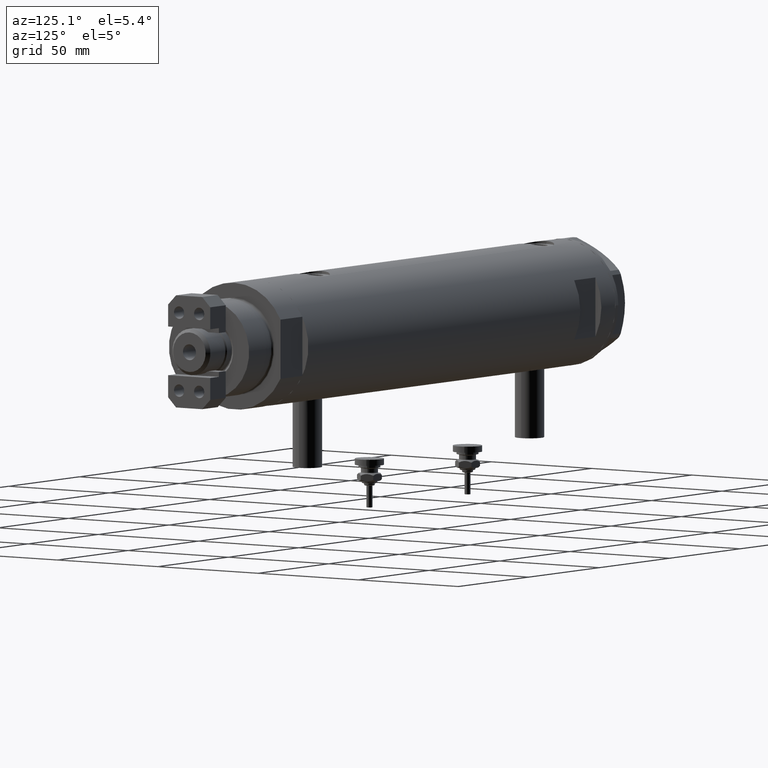
[diagram: clean part render]
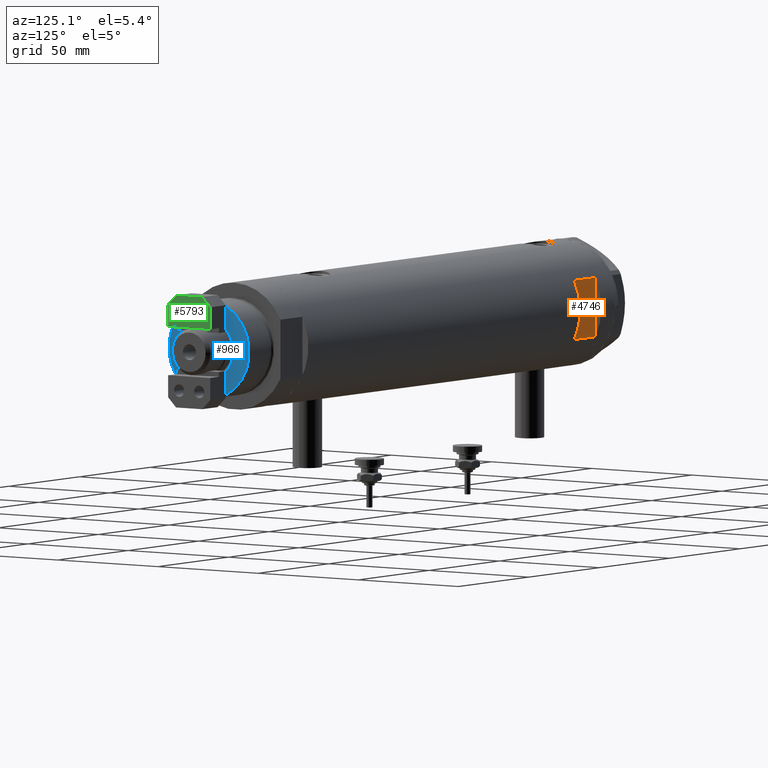
[diagram: same view with three faces highlighted in distinct colors, each labeled with its STEP entity id]
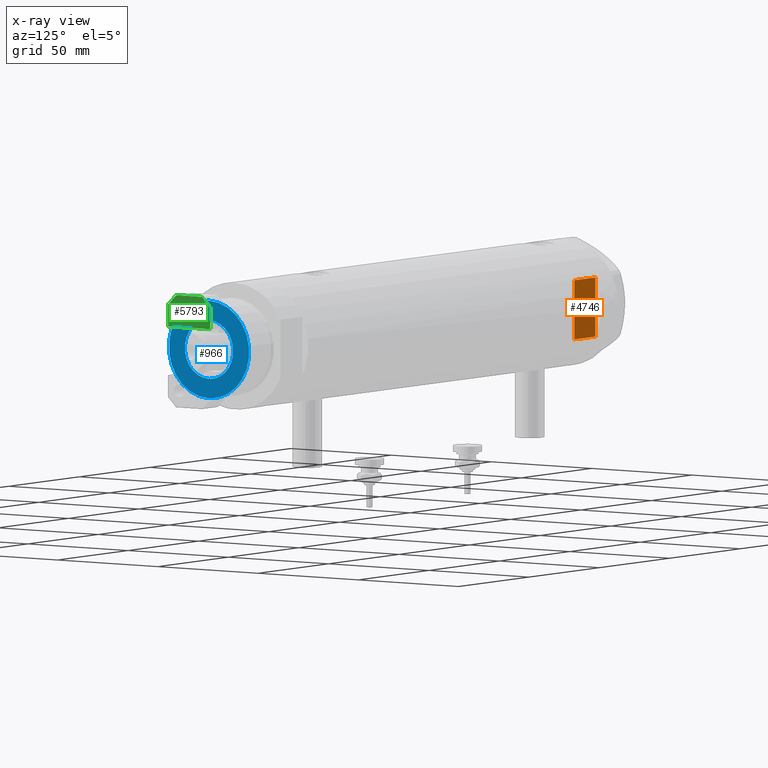
[diagram: x-ray of the same camera — body ghosted, the three highlighted faces saturated]
A machine part, auxiliary view with three faces highlighted in distinct colors.
The next image is the same camera in x-ray (body ghosted, the three faces saturated) — at least one of them is partly hidden behind the body in this view.
Their STEP definitions:

[orange] entity #4746 — the highlighted planar face has unit normal (0, -1, -0).
#110 = CARTESIAN_POINT ( 'NONE',  ( 12.12435565298213724, 23.00000000000000355, 83.95000000000003126 ) ) ;
#171 = VERTEX_POINT ( 'NONE', #2279 ) ;
#202 = EDGE_CURVE ( 'NONE', #1807, #2329, #5563, .T. ) ;
#404 = LINE ( 'NONE', #5305, #2762 ) ;
#742 = LINE ( 'NONE', #1930, #2668 ) ;
#884 = EDGE_CURVE ( 'NONE', #171, #1807, #742, .T. ) ;
#952 = DIRECTION ( 'NONE',  ( 0.000000000000000000, 0.000000000000000000, -1.000000000000000000 ) ) ;
#1510 = CARTESIAN_POINT ( 'NONE',  ( -26.00000000000000355, 23.00000000000000355, 98.95000000000001705 ) ) ;
#1537 = CARTESIAN_POINT ( 'NONE',  ( -12.12435565298214080, 23.00000000000000355, 83.95000000000003126 ) ) ;
#1576 = PLANE ( 'NONE',  #6283 ) ;
#1585 = ORIENTED_EDGE ( 'NONE', *, *, #202, .T. ) ;
#1801 = CARTESIAN_POINT ( 'NONE',  ( -26.00000000000000355, 23.00000000000000355, 83.95000000000003126 ) ) ;
#1807 = VERTEX_POINT ( 'NONE', #4353 ) ;
#1930 = CARTESIAN_POINT ( 'NONE',  ( -26.00000000000000355, 23.00000000000000355, 98.95000000000001705 ) ) ;
#2180 = ORIENTED_EDGE ( 'NONE', *, *, #3868, .F. ) ;
#2279 = CARTESIAN_POINT ( 'NONE',  ( -12.12435565298214080, 23.00000000000000355, 98.95000000000001705 ) ) ;
#2329 = VERTEX_POINT ( 'NONE', #110 ) ;
#2536 = VERTEX_POINT ( 'NONE', #1537 ) ;
#2668 = VECTOR ( 'NONE', #2933, 1000.000000000000000 ) ;
#2762 = VECTOR ( 'NONE', #3682, 1000.000000000000000 ) ;
#2839 = DIRECTION ( 'NONE',  ( -0.000000000000000000, -0.000000000000000000, -1.000000000000000000 ) ) ;
#2933 = DIRECTION ( 'NONE',  ( 1.000000000000000000, -0.000000000000000000, -0.000000000000000000 ) ) ;
#2982 = EDGE_LOOP ( 'NONE', ( #1585, #2180, #6714, #4334 ) ) ;
#3682 = DIRECTION ( 'NONE',  ( 0.000000000000000000, 0.000000000000000000, 1.000000000000000000 ) ) ;
#3753 = DIRECTION ( 'NONE',  ( 0.000000000000000000, -1.000000000000000000, -0.000000000000000000 ) ) ;
#3844 = DIRECTION ( 'NONE',  ( 1.000000000000000000, -0.000000000000000000, -0.000000000000000000 ) ) ;
#3868 = EDGE_CURVE ( 'NONE', #2536, #2329, #6394, .T. ) ;
#4334 = ORIENTED_EDGE ( 'NONE', *, *, #884, .T. ) ;
#4353 = CARTESIAN_POINT ( 'NONE',  ( 12.12435565298214080, 23.00000000000000355, 98.95000000000001705 ) ) ;
#4746 = ADVANCED_FACE ( 'NONE', ( #5307 ), #1576, .F. ) ;
#5287 = VECTOR ( 'NONE', #2839, 1000.000000000000000 ) ;
#5305 = CARTESIAN_POINT ( 'NONE',  ( -12.12435565298214080, 23.00000000000000355, -108.9500000000000028 ) ) ;
#5307 = FACE_OUTER_BOUND ( 'NONE', #2982, .T. ) ;
#5563 = LINE ( 'NONE', #5598, #5287 ) ;
#5598 = CARTESIAN_POINT ( 'NONE',  ( 12.12435565298214080, 23.00000000000000355, -108.9500000000000028 ) ) ;
#6283 = AXIS2_PLACEMENT_3D ( 'NONE', #1510, #3753, #952 ) ;
#6394 = LINE ( 'NONE', #1801, #7052 ) ;
#6678 = EDGE_CURVE ( 'NONE', #2536, #171, #404, .T. ) ;
#6714 = ORIENTED_EDGE ( 'NONE', *, *, #6678, .T. ) ;
#7052 = VECTOR ( 'NONE', #3844, 1000.000000000000000 ) ;

[blue] entity #966 — the highlighted planar face has unit normal (1, 0, -0).
#412 = ORIENTED_EDGE ( 'NONE', *, *, #4581, .T. ) ;
#477 = DIRECTION ( 'NONE',  ( -0.000000000000000000, -0.000000000000000000, -1.000000000000000000 ) ) ;
#498 = AXIS2_PLACEMENT_3D ( 'NONE', #6200, #5591, #3433 ) ;
#511 = DIRECTION ( 'NONE',  ( 1.000000000000000000, 0.000000000000000000, 0.000000000000000000 ) ) ;
#694 = CIRCLE ( 'NONE', #806, 19.99999999999999645 ) ;
#806 = AXIS2_PLACEMENT_3D ( 'NONE', #5266, #6933, #511 ) ;
#966 = ADVANCED_FACE ( 'NONE', ( #4510, #6819 ), #3495, .T. ) ;
#1550 = VERTEX_POINT ( 'NONE', #5456 ) ;
#1711 = ORIENTED_EDGE ( 'NONE', *, *, #6896, .T. ) ;
#2410 = VERTEX_POINT ( 'NONE', #5727 ) ;
#2960 = DIRECTION ( 'NONE',  ( 0.000000000000000000, 0.000000000000000000, 1.000000000000000000 ) ) ;
#3432 = AXIS2_PLACEMENT_3D ( 'NONE', #6753, #2960, #4038 ) ;
#3433 = DIRECTION ( 'NONE',  ( 1.000000000000000000, 0.000000000000000000, -0.000000000000000000 ) ) ;
#3495 = PLANE ( 'NONE',  #498 ) ;
#3751 = AXIS2_PLACEMENT_3D ( 'NONE', #6415, #5409, #7039 ) ;
#3833 = CARTESIAN_POINT ( 'NONE',  ( -12.05000000000000426, 1.475699392972560823E-15, 33.50000000000000000 ) ) ;
#4038 = DIRECTION ( 'NONE',  ( 1.000000000000000000, 0.000000000000000000, 0.000000000000000000 ) ) ;
#4078 = CARTESIAN_POINT ( 'NONE',  ( 0.000000000000000000, 0.000000000000000000, 33.50000000000000000 ) ) ;
#4292 = VERTEX_POINT ( 'NONE', #3833 ) ;
#4332 = DIRECTION ( 'NONE',  ( 1.000000000000000000, 0.000000000000000000, 0.000000000000000000 ) ) ;
#4496 = ORIENTED_EDGE ( 'NONE', *, *, #4624, .T. ) ;
#4510 = FACE_BOUND ( 'NONE', #5225, .T. ) ;
#4581 = EDGE_CURVE ( 'NONE', #1550, #4292, #6723, .T. ) ;
#4624 = EDGE_CURVE ( 'NONE', #2410, #6050, #694, .T. ) ;
#4732 = EDGE_CURVE ( 'NONE', #4292, #1550, #6829, .T. ) ;
#5156 = CIRCLE ( 'NONE', #3432, 19.99999999999999645 ) ;
#5225 = EDGE_LOOP ( 'NONE', ( #412, #6749 ) ) ;
#5266 = CARTESIAN_POINT ( 'NONE',  ( 0.000000000000000000, 0.000000000000000000, 33.50000000000000000 ) ) ;
#5409 = DIRECTION ( 'NONE',  ( -0.000000000000000000, -0.000000000000000000, -1.000000000000000000 ) ) ;
#5456 = CARTESIAN_POINT ( 'NONE',  ( 12.05000000000000426, 0.000000000000000000, 33.50000000000000000 ) ) ;
#5591 = DIRECTION ( 'NONE',  ( 0.000000000000000000, 0.000000000000000000, 1.000000000000000000 ) ) ;
#5727 = CARTESIAN_POINT ( 'NONE',  ( 19.99999999999999645, 2.449293598294706119E-15, 33.50000000000000000 ) ) ;
#6050 = VERTEX_POINT ( 'NONE', #6883 ) ;
#6164 = AXIS2_PLACEMENT_3D ( 'NONE', #4078, #477, #4332 ) ;
#6200 = CARTESIAN_POINT ( 'NONE',  ( 0.000000000000000000, 0.000000000000000000, 33.50000000000000000 ) ) ;
#6415 = CARTESIAN_POINT ( 'NONE',  ( 0.000000000000000000, 0.000000000000000000, 33.50000000000000000 ) ) ;
#6722 = EDGE_LOOP ( 'NONE', ( #1711, #4496 ) ) ;
#6723 = CIRCLE ( 'NONE', #6164, 12.05000000000000426 ) ;
#6749 = ORIENTED_EDGE ( 'NONE', *, *, #4732, .T. ) ;
#6753 = CARTESIAN_POINT ( 'NONE',  ( 0.000000000000000000, 0.000000000000000000, 33.50000000000000000 ) ) ;
#6819 = FACE_OUTER_BOUND ( 'NONE', #6722, .T. ) ;
#6829 = CIRCLE ( 'NONE', #3751, 12.05000000000000426 ) ;
#6883 = CARTESIAN_POINT ( 'NONE',  ( -19.99999999999999645, 0.000000000000000000, 33.50000000000000000 ) ) ;
#6896 = EDGE_CURVE ( 'NONE', #6050, #2410, #5156, .T. ) ;
#6933 = DIRECTION ( 'NONE',  ( 0.000000000000000000, 0.000000000000000000, 1.000000000000000000 ) ) ;
#7039 = DIRECTION ( 'NONE',  ( 1.000000000000000000, 0.000000000000000000, 0.000000000000000000 ) ) ;

[green] entity #5793 — the highlighted planar face has unit normal (1, -0, -0).
#60 = CARTESIAN_POINT ( 'NONE',  ( 5.499999999999995559, 10.49999999999999822, 11.00000000000000000 ) ) ;
#65 = VERTEX_POINT ( 'NONE', #2947 ) ;
#78 = CARTESIAN_POINT ( 'NONE',  ( -7.499999999999999112, -6.499999999999988454, 11.00000000000000000 ) ) ;
#164 = EDGE_CURVE ( 'NONE', #3958, #5901, #7022, .T. ) ;
#362 = VERTEX_POINT ( 'NONE', #5200 ) ;
#364 = DIRECTION ( 'NONE',  ( 0.000000000000000000, 0.000000000000000000, -1.000000000000000000 ) ) ;
#444 = VECTOR ( 'NONE', #1592, 1000.000000000000000 ) ;
#461 = EDGE_CURVE ( 'NONE', #362, #65, #4368, .T. ) ;
#503 = ORIENTED_EDGE ( 'NONE', *, *, #2582, .T. ) ;
#510 = VECTOR ( 'NONE', #4682, 1000.000000000000000 ) ;
#559 = DIRECTION ( 'NONE',  ( 0.000000000000000000, 0.000000000000000000, -1.000000000000000000 ) ) ;
#579 = AXIS2_PLACEMENT_3D ( 'NONE', #2042, #3717, #7009 ) ;
#674 = DIRECTION ( 'NONE',  ( -0.000000000000000000, -1.000000000000000000, -0.000000000000000000 ) ) ;
#962 = VERTEX_POINT ( 'NONE', #4645 ) ;
#1014 = DIRECTION ( 'NONE',  ( 8.260587980841940012E-17, -1.000000000000000000, 0.000000000000000000 ) ) ;
#1083 = EDGE_CURVE ( 'NONE', #2380, #6849, #1539, .T. ) ;
#1428 = CARTESIAN_POINT ( 'NONE',  ( 0.000000000000000000, 0.000000000000000000, 11.00000000000000000 ) ) ;
#1539 = LINE ( 'NONE', #4254, #4938 ) ;
#1592 = DIRECTION ( 'NONE',  ( -0.7071067811865487940, -0.7071067811865463515, -0.000000000000000000 ) ) ;
#1650 = CARTESIAN_POINT ( 'NONE',  ( 2.049999999999999378, -4.999999999999999112, 11.00000000000000000 ) ) ;
#1796 = CARTESIAN_POINT ( 'NONE',  ( -0.5000000000000004441, 4.999999999999999112, 11.00000000000000000 ) ) ;
#1805 = DIRECTION ( 'NONE',  ( -1.000000000000000000, -0.000000000000000000, -0.000000000000000000 ) ) ;
#1926 = AXIS2_PLACEMENT_3D ( 'NONE', #5057, #559, #4904 ) ;
#1958 = VECTOR ( 'NONE', #4935, 1000.000000000000000 ) ;
#2042 = CARTESIAN_POINT ( 'NONE',  ( -0.5000000000000004441, -4.999999999999999112, 11.00000000000000000 ) ) ;
#2227 = CIRCLE ( 'NONE', #6004, 2.549999999999999822 ) ;
#2292 = CIRCLE ( 'NONE', #579, 2.549999999999999822 ) ;
#2380 = VERTEX_POINT ( 'NONE', #6659 ) ;
#2582 = EDGE_CURVE ( 'NONE', #6849, #962, #3169, .T. ) ;
#2617 = EDGE_CURVE ( 'NONE', #4853, #4161, #2227, .T. ) ;
#2715 = VERTEX_POINT ( 'NONE', #4859 ) ;
#2947 = CARTESIAN_POINT ( 'NONE',  ( 2.049999999999999378, 4.999999999999999112, 11.00000000000000000 ) ) ;
#3021 = DIRECTION ( 'NONE',  ( -0.000000000000000000, 0.000000000000000000, 1.000000000000000000 ) ) ;
#3099 = AXIS2_PLACEMENT_3D ( 'NONE', #1796, #6208, #3501 ) ;
#3169 = LINE ( 'NONE', #5792, #510 ) ;
#3209 = EDGE_CURVE ( 'NONE', #3958, #2715, #3453, .T. ) ;
#3225 = EDGE_LOOP ( 'NONE', ( #4753, #5400 ) ) ;
#3453 = LINE ( 'NONE', #5644, #5349 ) ;
#3501 = DIRECTION ( 'NONE',  ( -1.000000000000000000, 0.000000000000000000, 0.000000000000000000 ) ) ;
#3516 = CIRCLE ( 'NONE', #1926, 2.549999999999999822 ) ;
#3557 = FACE_OUTER_BOUND ( 'NONE', #6475, .T. ) ;
#3717 = DIRECTION ( 'NONE',  ( 0.000000000000000000, 0.000000000000000000, -1.000000000000000000 ) ) ;
#3743 = ORIENTED_EDGE ( 'NONE', *, *, #461, .T. ) ;
#3825 = LINE ( 'NONE', #6021, #1958 ) ;
#3839 = EDGE_CURVE ( 'NONE', #2715, #2380, #5356, .T. ) ;
#3958 = VERTEX_POINT ( 'NONE', #60 ) ;
#3989 = ORIENTED_EDGE ( 'NONE', *, *, #3839, .T. ) ;
#4090 = EDGE_LOOP ( 'NONE', ( #3743, #5815 ) ) ;
#4125 = CARTESIAN_POINT ( 'NONE',  ( -3.050000000000000266, -4.999999999999999112, 11.00000000000000000 ) ) ;
#4161 = VERTEX_POINT ( 'NONE', #4125 ) ;
#4254 = CARTESIAN_POINT ( 'NONE',  ( -7.500000000000000888, 10.49999999999999822, 11.00000000000000000 ) ) ;
#4314 = CARTESIAN_POINT ( 'NONE',  ( -6.999999999999987566, 7.000000000000012434, 11.00000000000000000 ) ) ;
#4363 = EDGE_CURVE ( 'NONE', #65, #362, #3516, .T. ) ;
#4368 = CIRCLE ( 'NONE', #3099, 2.549999999999999822 ) ;
#4444 = ORIENTED_EDGE ( 'NONE', *, *, #6889, .T. ) ;
#4484 = CARTESIAN_POINT ( 'NONE',  ( 5.499999999999999112, 10.49999999999999822, 11.00000000000000000 ) ) ;
#4645 = CARTESIAN_POINT ( 'NONE',  ( -3.500000000000002220, -10.49999999999999822, 11.00000000000000000 ) ) ;
#4682 = DIRECTION ( 'NONE',  ( 0.7071067811865463515, -0.7071067811865487940, 0.000000000000000000 ) ) ;
#4688 = EDGE_CURVE ( 'NONE', #4161, #4853, #2292, .T. ) ;
#4753 = ORIENTED_EDGE ( 'NONE', *, *, #4688, .T. ) ;
#4756 = DIRECTION ( 'NONE',  ( -1.000000000000000000, 0.000000000000000000, 0.000000000000000000 ) ) ;
#4853 = VERTEX_POINT ( 'NONE', #1650 ) ;
#4859 = CARTESIAN_POINT ( 'NONE',  ( -3.499999999999992006, 10.49999999999999822, 11.00000000000000000 ) ) ;
#4876 = ORIENTED_EDGE ( 'NONE', *, *, #3209, .T. ) ;
#4904 = DIRECTION ( 'NONE',  ( -1.000000000000000000, 0.000000000000000000, 0.000000000000000000 ) ) ;
#4935 = DIRECTION ( 'NONE',  ( 1.000000000000000000, 0.000000000000000000, 0.000000000000000000 ) ) ;
#4938 = VECTOR ( 'NONE', #1014, 1000.000000000000000 ) ;
#5057 = CARTESIAN_POINT ( 'NONE',  ( -0.5000000000000004441, 4.999999999999999112, 11.00000000000000000 ) ) ;
#5200 = CARTESIAN_POINT ( 'NONE',  ( -3.050000000000000266, 4.999999999999999112, 11.00000000000000000 ) ) ;
#5349 = VECTOR ( 'NONE', #1805, 1000.000000000000000 ) ;
#5356 = LINE ( 'NONE', #4314, #444 ) ;
#5400 = ORIENTED_EDGE ( 'NONE', *, *, #2617, .T. ) ;
#5488 = AXIS2_PLACEMENT_3D ( 'NONE', #1428, #3021, #6776 ) ;
#5644 = CARTESIAN_POINT ( 'NONE',  ( -7.500000000000000888, 10.49999999999999822, 11.00000000000000000 ) ) ;
#5717 = ORIENTED_EDGE ( 'NONE', *, *, #164, .F. ) ;
#5752 = PLANE ( 'NONE',  #5488 ) ;
#5792 = CARTESIAN_POINT ( 'NONE',  ( -7.000000000000006217, -6.999999999999982236, 11.00000000000000000 ) ) ;
#5793 = ADVANCED_FACE ( 'NONE', ( #6222, #6846, #3557 ), #5752, .T. ) ;
#5815 = ORIENTED_EDGE ( 'NONE', *, *, #4363, .T. ) ;
#5901 = VERTEX_POINT ( 'NONE', #6950 ) ;
#6004 = AXIS2_PLACEMENT_3D ( 'NONE', #6928, #364, #4756 ) ;
#6021 = CARTESIAN_POINT ( 'NONE',  ( -7.499999999999999112, -10.49999999999999822, 11.00000000000000000 ) ) ;
#6032 = ORIENTED_EDGE ( 'NONE', *, *, #1083, .T. ) ;
#6208 = DIRECTION ( 'NONE',  ( 0.000000000000000000, 0.000000000000000000, -1.000000000000000000 ) ) ;
#6222 = FACE_BOUND ( 'NONE', #3225, .T. ) ;
#6475 = EDGE_LOOP ( 'NONE', ( #5717, #4876, #3989, #6032, #503, #4444 ) ) ;
#6659 = CARTESIAN_POINT ( 'NONE',  ( -7.500000000000000888, 6.500000000000002665, 11.00000000000000000 ) ) ;
#6776 = DIRECTION ( 'NONE',  ( 1.000000000000000000, 0.000000000000000000, 0.000000000000000000 ) ) ;
#6846 = FACE_BOUND ( 'NONE', #4090, .T. ) ;
#6849 = VERTEX_POINT ( 'NONE', #78 ) ;
#6864 = VECTOR ( 'NONE', #674, 1000.000000000000000 ) ;
#6889 = EDGE_CURVE ( 'NONE', #962, #5901, #3825, .T. ) ;
#6928 = CARTESIAN_POINT ( 'NONE',  ( -0.5000000000000004441, -4.999999999999999112, 11.00000000000000000 ) ) ;
#6950 = CARTESIAN_POINT ( 'NONE',  ( 5.499999999999999112, -10.49999999999999822, 11.00000000000000000 ) ) ;
#7009 = DIRECTION ( 'NONE',  ( -1.000000000000000000, 0.000000000000000000, 0.000000000000000000 ) ) ;
#7022 = LINE ( 'NONE', #4484, #6864 ) ;